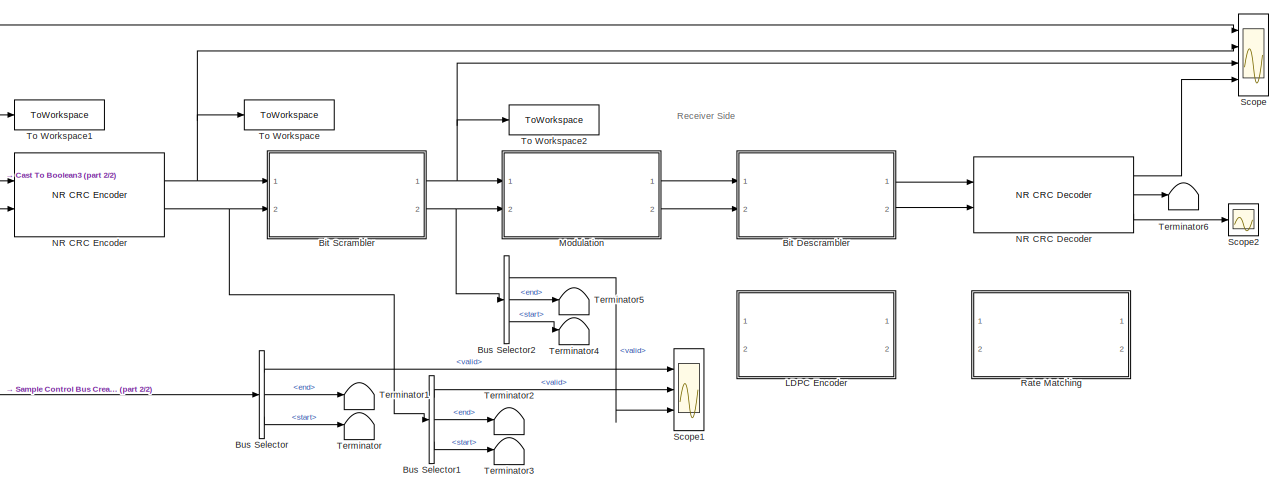
[diagram: root canvas - part 1/2, center side, full height]
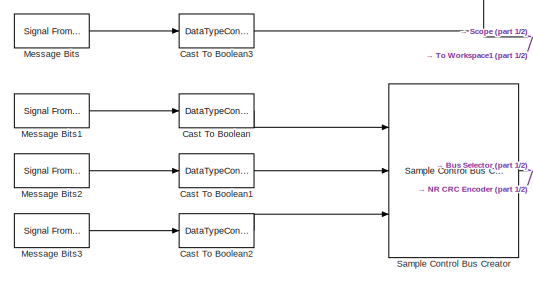
[diagram: root canvas - part 2/2, middle left region]
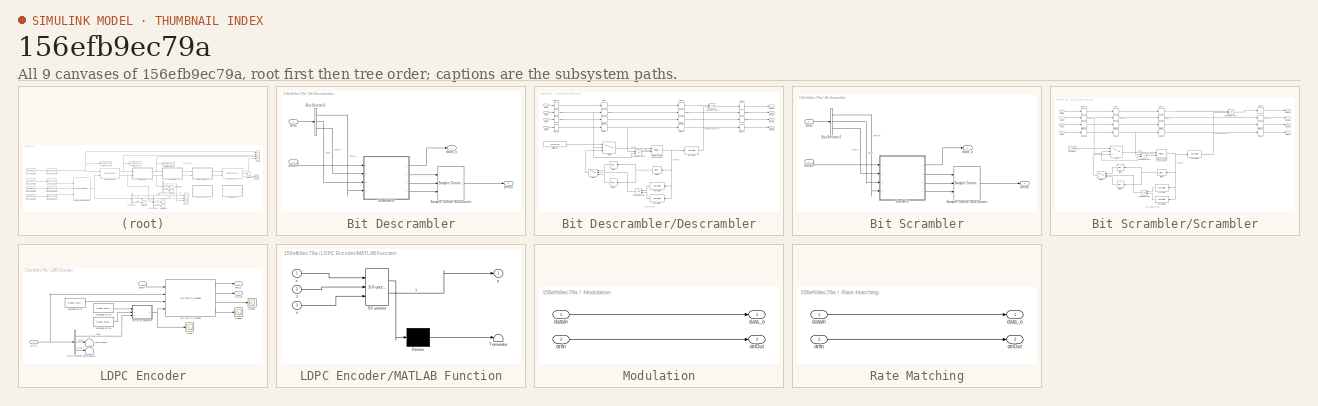
[diagram: thumbnail index - all 9 canvases of the model, root first then tree order]
MODEL slx_156efb9ec79a
KIND model
CONFIG AbsTol = auto
CONFIG EnableMultiTasking = off
CONFIG FixedStep = auto
CONFIG MaxStep = auto
CONFIG MinStep = auto
CONFIG RelTol = 1e-3
CONFIG SampleTimeConstraint = Unconstrained
CONFIG SolverName = VariableStepAuto
CONFIG StartTime = 0.0
CONFIG StopTime = 150
BLOCK [SubSystem] Bit Descrambler
  Ports = [2, 2]
  RequestExecContextInheritance = off
BLOCK [BusSelector] Bit Descrambler/Bus Selector2
  OutputSignals = valid,end,start
  Ports = [1, 3]
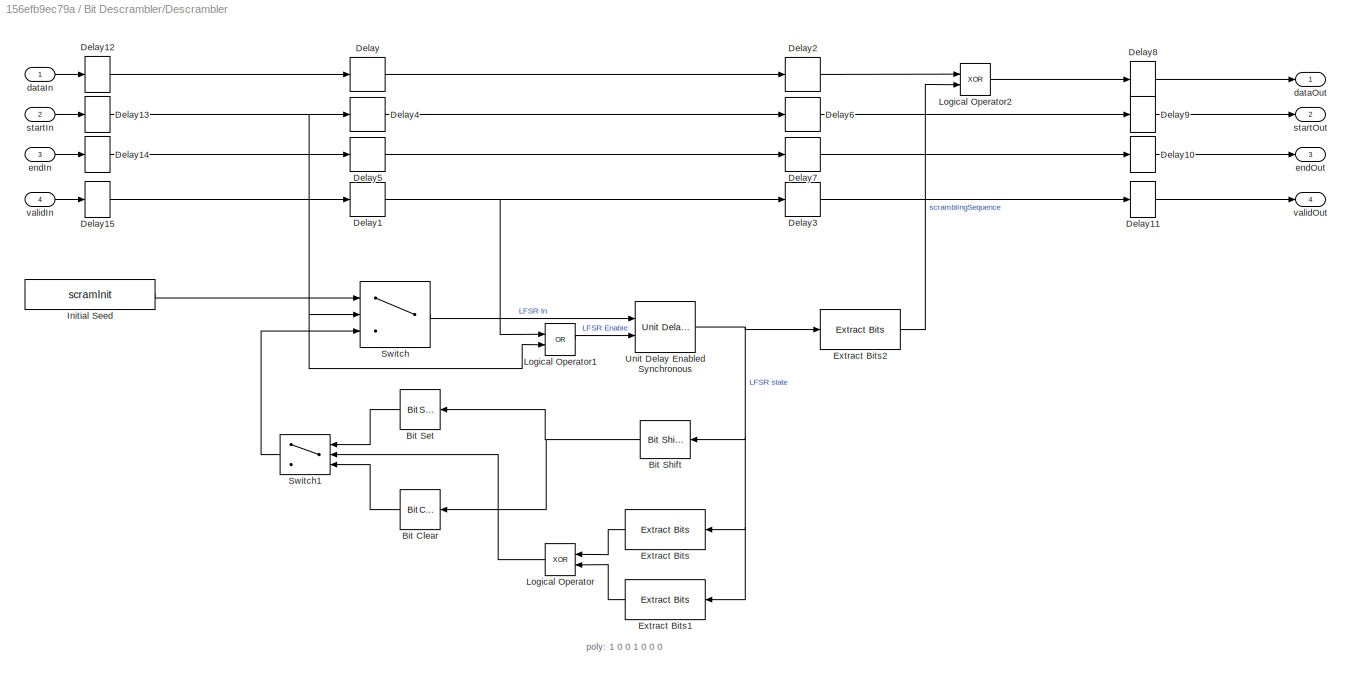
BLOCK [SubSystem] Bit Descrambler/Descrambler
  Ports = [4, 4]
  RequestExecContextInheritance = off
BLOCK [Reference] Bit Descrambler/Descrambler/Bit Clear  REF=simulink/Logic and Bit
Operations/Bit Clear
  Ports = [1, 1]
  SourceBlock = simulink/Logic and Bit\nOperations/Bit Clear
  SourceProductBaseCode = SL
  SourceType = Bit Clear
BLOCK [Reference] Bit Descrambler/Descrambler/Bit Set  REF=simulink/Logic and Bit
Operations/Bit Set
  Ports = [1, 1]
  SourceBlock = simulink/Logic and Bit\nOperations/Bit Set
  SourceProductBaseCode = SL
  SourceType = Bit Set
BLOCK [Reference] Bit Descrambler/Descrambler/Bit Shift  REF=hdlsllib/Logic and Bit
Operations/Bit Shift
  Ports = [1, 1]
  SourceBlock = hdlsllib/Logic and Bit\nOperations/Bit Shift
  SourceProductBaseCode = SL
  SourceType = Bit Shift
BLOCK [Delay] Bit Descrambler/Descrambler/Delay
  DelayLength = 1
  InputPortMap = u0
  Ports = [1, 1]
BLOCK [Delay] Bit Descrambler/Descrambler/Delay1
  DelayLength = 1
  InputPortMap = u0
  Ports = [1, 1]
BLOCK [Delay] Bit Descrambler/Descrambler/Delay10
  DelayLength = 1
  InitialCondition = 0
  InputPortMap = u0
  Ports = [1, 1]
BLOCK [Delay] Bit Descrambler/Descrambler/Delay11
  DelayLength = 1
  InitialCondition = 0
  InputPortMap = u0
  Ports = [1, 1]
BLOCK [Delay] Bit Descrambler/Descrambler/Delay12
  DelayLength = 1
  InitialCondition = 0
  InputPortMap = u0
  Ports = [1, 1]
BLOCK [Delay] Bit Descrambler/Descrambler/Delay13
  DelayLength = 1
  InitialCondition = 0
  InputPortMap = u0
  Ports = [1, 1]
BLOCK [Delay] Bit Descrambler/Descrambler/Delay14
  DelayLength = 1
  InitialCondition = 0
  InputPortMap = u0
  Ports = [1, 1]
BLOCK [Delay] Bit Descrambler/Descrambler/Delay15
  DelayLength = 1
  InitialCondition = 0
  InputPortMap = u0
  Ports = [1, 1]
BLOCK [Delay] Bit Descrambler/Descrambler/Delay2
  DelayLength = 1
  InputPortMap = u0
  Ports = [1, 1]
BLOCK [Delay] Bit Descrambler/Descrambler/Delay3
  DelayLength = 1
  InputPortMap = u0
  Ports = [1, 1]
BLOCK [Delay] Bit Descrambler/Descrambler/Delay4
  DelayLength = 1
  InputPortMap = u0
  Ports = [1, 1]
BLOCK [Delay] Bit Descrambler/Descrambler/Delay5
  DelayLength = 1
  InputPortMap = u0
  Ports = [1, 1]
BLOCK [Delay] Bit Descrambler/Descrambler/Delay6
  DelayLength = 1
  InputPortMap = u0
  Ports = [1, 1]
BLOCK [Delay] Bit Descrambler/Descrambler/Delay7
  DelayLength = 1
  InputPortMap = u0
  Ports = [1, 1]
BLOCK [Delay] Bit Descrambler/Descrambler/Delay8
  DelayLength = 1
  InitialCondition = 0
  InputPortMap = u0
  Ports = [1, 1]
BLOCK [Delay] Bit Descrambler/Descrambler/Delay9
  DelayLength = 1
  InitialCondition = 0
  InputPortMap = u0
  Ports = [1, 1]
BLOCK [Reference] Bit Descrambler/Descrambler/Extract Bits  REF=simulink/Logic and Bit
Operations/Extract Bits
  Ports = [1, 1]
  SourceBlock = simulink/Logic and Bit\nOperations/Extract Bits
  SourceProductBaseCode = SL
  SourceType = Extract Bits
BLOCK [Reference] Bit Descrambler/Descrambler/Extract Bits1  REF=simulink/Logic and Bit
Operations/Extract Bits
  Ports = [1, 1]
  SourceBlock = simulink/Logic and Bit\nOperations/Extract Bits
  SourceProductBaseCode = SL
  SourceType = Extract Bits
BLOCK [Reference] Bit Descrambler/Descrambler/Extract Bits2  REF=simulink/Logic and Bit
Operations/Extract Bits
  Ports = [1, 1]
  SourceBlock = simulink/Logic and Bit\nOperations/Extract Bits
  SourceProductBaseCode = SL
  SourceType = Extract Bits
BLOCK [Constant] Bit Descrambler/Descrambler/Initial Seed
  OutDataTypeStr = fixdt(0,7,0)
  SampleTime = -1
  Value = scramInit
BLOCK [Logic] Bit Descrambler/Descrambler/Logical Operator
  AllPortsSameDT = off
  IconShape = distinctive
  Operator = XOR
  OutDataTypeStr = boolean
  Ports = [2, 1]
BLOCK [Logic] Bit Descrambler/Descrambler/Logical Operator1
  AllPortsSameDT = off
  IconShape = distinctive
  Operator = OR
  OutDataTypeStr = boolean
  Ports = [2, 1]
BLOCK [Logic] Bit Descrambler/Descrambler/Logical Operator2
  AllPortsSameDT = off
  IconShape = distinctive
  Operator = XOR
  OutDataTypeStr = boolean
  Ports = [2, 1]
BLOCK [Switch] Bit Descrambler/Descrambler/Switch
  InputSameDT = off
  SaturateOnIntegerOverflow = off
  Threshold = 1
BLOCK [Switch] Bit Descrambler/Descrambler/Switch1
  InputSameDT = off
  SaturateOnIntegerOverflow = off
  Threshold = 1
BLOCK [Reference] Bit Descrambler/Descrambler/Unit Delay Enabled Synchronous  REF=hdlsllib/Discrete/Unit Delay Enabled
Synchronous
  Ports = [2, 1]
  SourceBlock = hdlsllib/Discrete/Unit Delay Enabled\nSynchronous
  SourceProductBaseCode = SL
  SourceType = Unit Delay Enabled Synchronous
BLOCK [Inport] Bit Descrambler/Descrambler/dataIn
BLOCK [Outport] Bit Descrambler/Descrambler/dataOut
BLOCK [Inport] Bit Descrambler/Descrambler/endIn
  Port = 3
BLOCK [Outport] Bit Descrambler/Descrambler/endOut
  Port = 3
BLOCK [Inport] Bit Descrambler/Descrambler/startIn
  Port = 2
BLOCK [Outport] Bit Descrambler/Descrambler/startOut
  Port = 2
BLOCK [Inport] Bit Descrambler/Descrambler/validIn
  Port = 4
BLOCK [Outport] Bit Descrambler/Descrambler/validOut
  Port = 4
BLOCK [Reference] Bit Descrambler/Sample Control Bus Creator  REF=whdlutilities/Sample Control
Bus Creator
  Ports = [3, 1]
  SourceBlock = whdlutilities/Sample Control\nBus Creator
  SourceProductBaseCode = LH
  SourceType = Sample Control Bus Creator
BLOCK [Inport] Bit Descrambler/ctrlIn
  Port = 2
BLOCK [Outport] Bit Descrambler/ctrlOut
  Port = 2
BLOCK [Inport] Bit Descrambler/dataIn
BLOCK [Outport] Bit Descrambler/data_o
BLOCK [SubSystem] Bit Scrambler
  Ports = [2, 2]
  RequestExecContextInheritance = off
BLOCK [BusSelector] Bit Scrambler/Bus Selector2
  OutputSignals = valid,end,start
  Ports = [1, 3]
BLOCK [Reference] Bit Scrambler/Sample Control Bus Creator  REF=whdlutilities/Sample Control
Bus Creator
  Ports = [3, 1]
  SourceBlock = whdlutilities/Sample Control\nBus Creator
  SourceProductBaseCode = LH
  SourceType = Sample Control Bus Creator
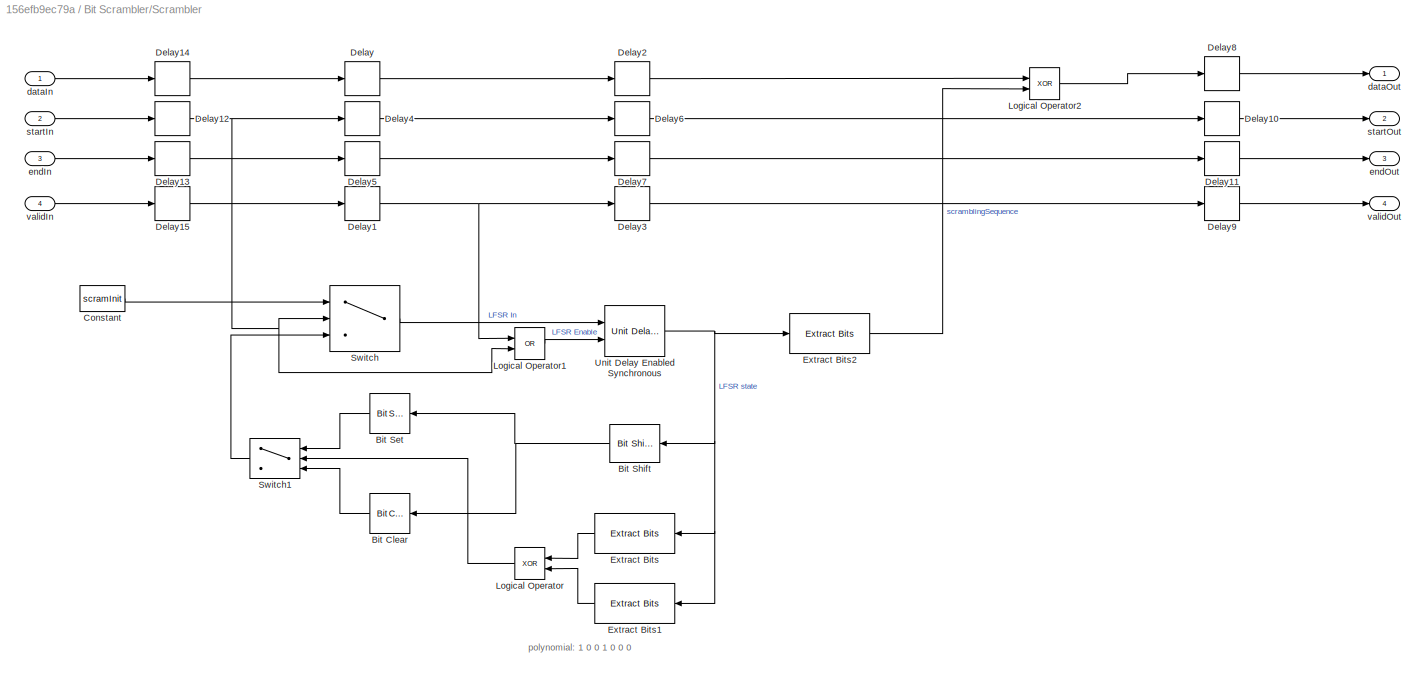
BLOCK [SubSystem] Bit Scrambler/Scrambler
  Ports = [4, 4]
  RequestExecContextInheritance = off
BLOCK [Reference] Bit Scrambler/Scrambler/Bit Clear  REF=simulink/Logic and Bit
Operations/Bit Clear
  Ports = [1, 1]
  SourceBlock = simulink/Logic and Bit\nOperations/Bit Clear
  SourceProductBaseCode = SL
  SourceType = Bit Clear
BLOCK [Reference] Bit Scrambler/Scrambler/Bit Set  REF=simulink/Logic and Bit
Operations/Bit Set
  Ports = [1, 1]
  SourceBlock = simulink/Logic and Bit\nOperations/Bit Set
  SourceProductBaseCode = SL
  SourceType = Bit Set
BLOCK [Reference] Bit Scrambler/Scrambler/Bit Shift  REF=hdlsllib/Logic and Bit
Operations/Bit Shift
  Ports = [1, 1]
  SourceBlock = hdlsllib/Logic and Bit\nOperations/Bit Shift
  SourceProductBaseCode = SL
  SourceType = Bit Shift
BLOCK [Constant] Bit Scrambler/Scrambler/Constant
  OutDataTypeStr = fixdt(0,7,0)
  SampleTime = -1
  Value = scramInit
BLOCK [Delay] Bit Scrambler/Scrambler/Delay
  DelayLength = 1
  InputPortMap = u0
  Ports = [1, 1]
BLOCK [Delay] Bit Scrambler/Scrambler/Delay1
  DelayLength = 1
  InputPortMap = u0
  Ports = [1, 1]
BLOCK [Delay] Bit Scrambler/Scrambler/Delay10
  DelayLength = 1
  InputPortMap = u0
  Ports = [1, 1]
BLOCK [Delay] Bit Scrambler/Scrambler/Delay11
  DelayLength = 1
  InputPortMap = u0
  Ports = [1, 1]
BLOCK [Delay] Bit Scrambler/Scrambler/Delay12
  DelayLength = 1
  InputPortMap = u0
  Ports = [1, 1]
BLOCK [Delay] Bit Scrambler/Scrambler/Delay13
  DelayLength = 1
  InputPortMap = u0
  Ports = [1, 1]
BLOCK [Delay] Bit Scrambler/Scrambler/Delay14
  DelayLength = 1
  InputPortMap = u0
  Ports = [1, 1]
BLOCK [Delay] Bit Scrambler/Scrambler/Delay15
  DelayLength = 1
  InputPortMap = u0
  Ports = [1, 1]
BLOCK [Delay] Bit Scrambler/Scrambler/Delay2
  DelayLength = 1
  InputPortMap = u0
  Ports = [1, 1]
BLOCK [Delay] Bit Scrambler/Scrambler/Delay3
  DelayLength = 1
  InputPortMap = u0
  Ports = [1, 1]
BLOCK [Delay] Bit Scrambler/Scrambler/Delay4
  DelayLength = 1
  InputPortMap = u0
  Ports = [1, 1]
BLOCK [Delay] Bit Scrambler/Scrambler/Delay5
  DelayLength = 1
  InputPortMap = u0
  Ports = [1, 1]
BLOCK [Delay] Bit Scrambler/Scrambler/Delay6
  DelayLength = 1
  InputPortMap = u0
  Ports = [1, 1]
BLOCK [Delay] Bit Scrambler/Scrambler/Delay7
  DelayLength = 1
  InputPortMap = u0
  Ports = [1, 1]
BLOCK [Delay] Bit Scrambler/Scrambler/Delay8
  DelayLength = 1
  InputPortMap = u0
  Ports = [1, 1]
BLOCK [Delay] Bit Scrambler/Scrambler/Delay9
  DelayLength = 1
  InputPortMap = u0
  Ports = [1, 1]
BLOCK [Reference] Bit Scrambler/Scrambler/Extract Bits  REF=simulink/Logic and Bit
Operations/Extract Bits
  Ports = [1, 1]
  SourceBlock = simulink/Logic and Bit\nOperations/Extract Bits
  SourceProductBaseCode = SL
  SourceType = Extract Bits
BLOCK [Reference] Bit Scrambler/Scrambler/Extract Bits1  REF=simulink/Logic and Bit
Operations/Extract Bits
  Ports = [1, 1]
  SourceBlock = simulink/Logic and Bit\nOperations/Extract Bits
  SourceProductBaseCode = SL
  SourceType = Extract Bits
BLOCK [Reference] Bit Scrambler/Scrambler/Extract Bits2  REF=simulink/Logic and Bit
Operations/Extract Bits
  Ports = [1, 1]
  SourceBlock = simulink/Logic and Bit\nOperations/Extract Bits
  SourceProductBaseCode = SL
  SourceType = Extract Bits
BLOCK [Logic] Bit Scrambler/Scrambler/Logical Operator
  AllPortsSameDT = off
  IconShape = distinctive
  Operator = XOR
  OutDataTypeStr = boolean
  Ports = [2, 1]
BLOCK [Logic] Bit Scrambler/Scrambler/Logical Operator1
  AllPortsSameDT = off
  IconShape = distinctive
  Operator = OR
  OutDataTypeStr = boolean
  Ports = [2, 1]
BLOCK [Logic] Bit Scrambler/Scrambler/Logical Operator2
  AllPortsSameDT = off
  IconShape = distinctive
  Operator = XOR
  OutDataTypeStr = boolean
  Ports = [2, 1]
BLOCK [Switch] Bit Scrambler/Scrambler/Switch
  InputSameDT = off
  SaturateOnIntegerOverflow = off
  Threshold = 1
BLOCK [Switch] Bit Scrambler/Scrambler/Switch1
  InputSameDT = off
  SaturateOnIntegerOverflow = off
  Threshold = 1
BLOCK [Reference] Bit Scrambler/Scrambler/Unit Delay Enabled Synchronous  REF=hdlsllib/Discrete/Unit Delay Enabled
Synchronous
  Ports = [2, 1]
  SourceBlock = hdlsllib/Discrete/Unit Delay Enabled\nSynchronous
  SourceProductBaseCode = SL
  SourceType = Unit Delay Enabled Synchronous
BLOCK [Inport] Bit Scrambler/Scrambler/dataIn
BLOCK [Outport] Bit Scrambler/Scrambler/dataOut
BLOCK [Inport] Bit Scrambler/Scrambler/endIn
  Port = 3
BLOCK [Outport] Bit Scrambler/Scrambler/endOut
  Port = 3
BLOCK [Inport] Bit Scrambler/Scrambler/startIn
  Port = 2
BLOCK [Outport] Bit Scrambler/Scrambler/startOut
  Port = 2
BLOCK [Inport] Bit Scrambler/Scrambler/validIn
  Port = 4
BLOCK [Outport] Bit Scrambler/Scrambler/validOut
  Port = 4
BLOCK [Inport] Bit Scrambler/ctrlIn
  Port = 2
BLOCK [Outport] Bit Scrambler/ctrlOut
  Port = 2
BLOCK [Inport] Bit Scrambler/dataIn
BLOCK [Outport] Bit Scrambler/data_o
BLOCK [BusSelector] Bus Selector
  OutputSignals = valid,end,start
  Ports = [1, 3]
BLOCK [BusSelector] Bus Selector1
  OutputSignals = valid,end,start
  Ports = [1, 3]
BLOCK [BusSelector] Bus Selector2
  OutputSignals = valid,end,start
  Ports = [1, 3]
BLOCK [DataTypeConversion] Cast To Boolean
  OutDataTypeStr = boolean
  RndMeth = Floor
  SaturateOnIntegerOverflow = off
BLOCK [DataTypeConversion] Cast To Boolean1
  OutDataTypeStr = boolean
  RndMeth = Floor
  SaturateOnIntegerOverflow = off
BLOCK [DataTypeConversion] Cast To Boolean2
  OutDataTypeStr = boolean
  RndMeth = Floor
  SaturateOnIntegerOverflow = off
BLOCK [DataTypeConversion] Cast To Boolean3
  OutDataTypeStr = boolean
  RndMeth = Floor
  SaturateOnIntegerOverflow = off
BLOCK [SubSystem] LDPC Encoder
  Commented = on
  Ports = [2, 2]
  RequestExecContextInheritance = off
BLOCK [BusSelector] LDPC Encoder/Bus Selector2
  OutputSignals = valid,end,start
  Ports = [1, 3]
BLOCK [SubSystem] LDPC Encoder/MATLAB Function
  ErrorFcn = Stateflow.Translate.translate
  PermitHierarchicalResolution = ExplicitOnly
  Ports = [3, 1]
  RequestExecContextInheritance = off
  SFBlockType = MATLAB Function
  TreatAsAtomicUnit = on
BLOCK [Demux] LDPC Encoder/MATLAB Function/ Demux 
  Outputs = 1
  Ports = [1, 1]
BLOCK [S-Function] LDPC Encoder/MATLAB Function/ SFunction 
  EnableBusSupport = on
  FunctionName = sf_sfun
  PortCounts = [3 2]
  Ports = [3, 2]
  SFcnIsStateOwnerBlock = off
  SFunctionDeploymentMode = off
  Tag = Stateflow S-Function 1
BLOCK [Terminator] LDPC Encoder/MATLAB Function/ Terminator 
BLOCK [Inport] LDPC Encoder/MATLAB Function/s
  Port = 3
BLOCK [Inport] LDPC Encoder/MATLAB Function/x
BLOCK [Outport] LDPC Encoder/MATLAB Function/y
BLOCK [Inport] LDPC Encoder/MATLAB Function/z
  Port = 2
BLOCK [Reference] LDPC Encoder/Message Bits  REF=dspsrcs4/Signal From
Workspace
  Ports = [0, 1]
  SourceBlock = dspsrcs4/Signal From\nWorkspace
  SourceProductBaseCode = DS
  SourceType = Signal From Workspace
BLOCK [Reference] LDPC Encoder/Message Bits1  REF=dspsrcs4/Signal From
Workspace
  Ports = [0, 1]
  SourceBlock = dspsrcs4/Signal From\nWorkspace
  SourceProductBaseCode = DS
  SourceType = Signal From Workspace
BLOCK [Reference] LDPC Encoder/Message Bits2  REF=dspsrcs4/Signal From
Workspace
  Ports = [0, 1]
  SourceBlock = dspsrcs4/Signal From\nWorkspace
  SourceProductBaseCode = DS
  SourceType = Signal From Workspace
BLOCK [Reference] LDPC Encoder/NR LDPC Encoder  REF=whdledac/NR LDPC Encoder
  Ports = [4, 4]
  SourceBlock = whdledac/NR LDPC Encoder
  SourceProductBaseCode = LH
  SourceType = NR LDPC Encoder
BLOCK [Scope] LDPC Encoder/Scope
  Floating = off
  NumInputPorts = 1
  Ports = [1]
  ScopeSpecificationString = Simulink.scopes.TimeScopeBlockCfg('CurrentConfiguration', extmgr.ConfigurationSet(extmgr.Configuration('Core','General UI',true),extmgr.Configuration('Core','Source UI',true),extmgr.Configuration('Sources','WiredSimulink',true,'DataLoggingVariableName','ScopeData1'),extmgr.Configuration('Visuals','Time Domain',true,'SerializedDisplays',{struct('MinYLimReal','-0.5','MaxYLimReal','4.5','YLabelReal',...<+1405ch>
BLOCK [Scope] LDPC Encoder/Scope1
  Floating = off
  NumInputPorts = 1
  Ports = [1]
  ScopeSpecificationString = Simulink.scopes.TimeScopeBlockCfg('CurrentConfiguration', extmgr.ConfigurationSet(extmgr.Configuration('Core','General UI',true),extmgr.Configuration('Core','Source UI',true),extmgr.Configuration('Sources','WiredSimulink',true,'DataLoggingVariableName','ScopeData2'),extmgr.Configuration('Visuals','Time Domain',true,'SerializedDisplays',{struct('MinYLimReal','-0.5','MaxYLimReal','4.5','YLabelReal',...<+1407ch>
BLOCK [Scope] LDPC Encoder/Scope2
  Floating = off
  NumInputPorts = 1
  Ports = [1]
  ScopeSpecificationString = Simulink.scopes.TimeScopeBlockCfg('CurrentConfiguration', extmgr.ConfigurationSet(extmgr.Configuration('Core','General UI',true),extmgr.Configuration('Core','Source UI',true),extmgr.Configuration('Sources','WiredSimulink',true,'DataLoggingVariableName','ScopeData3'),extmgr.Configuration('Visuals','Time Domain',true,'SerializedDisplays',{struct('MinYLimReal','-0.125','MaxYLimReal','1.125','YLabelRe...<+1427ch>
BLOCK [Terminator] LDPC Encoder/Terminator2
BLOCK [Terminator] LDPC Encoder/Terminator3
BLOCK [Inport] LDPC Encoder/ctrlIn
  Port = 2
BLOCK [Outport] LDPC Encoder/ctrlOut
  Port = 2
BLOCK [Inport] LDPC Encoder/dataIn
BLOCK [Outport] LDPC Encoder/data_o
BLOCK [Reference] Message Bits  REF=dspsrcs4/Signal From
Workspace
  Ports = [0, 1]
  SourceBlock = dspsrcs4/Signal From\nWorkspace
  SourceProductBaseCode = DS
  SourceType = Signal From Workspace
BLOCK [Reference] Message Bits1  REF=dspsrcs4/Signal From
Workspace
  Ports = [0, 1]
  SourceBlock = dspsrcs4/Signal From\nWorkspace
  SourceProductBaseCode = DS
  SourceType = Signal From Workspace
BLOCK [Reference] Message Bits2  REF=dspsrcs4/Signal From
Workspace
  Ports = [0, 1]
  SourceBlock = dspsrcs4/Signal From\nWorkspace
  SourceProductBaseCode = DS
  SourceType = Signal From Workspace
BLOCK [Reference] Message Bits3  REF=dspsrcs4/Signal From
Workspace
  Ports = [0, 1]
  SourceBlock = dspsrcs4/Signal From\nWorkspace
  SourceProductBaseCode = DS
  SourceType = Signal From Workspace
BLOCK [SubSystem] Modulation
  Ports = [2, 2]
  RequestExecContextInheritance = off
BLOCK [Inport] Modulation/ctrlIn
  Port = 2
BLOCK [Outport] Modulation/ctrlOut
  Port = 2
BLOCK [Inport] Modulation/dataIn
BLOCK [Outport] Modulation/data_o
BLOCK [Reference] NR CRC Decoder  REF=whdledac/NR CRC Decoder
  Ports = [2, 3]
  SourceBlock = whdledac/NR CRC Decoder
  SourceProductBaseCode = LH
  SourceType = NR CRC Decoder
BLOCK [Reference] NR CRC Encoder  REF=whdledac/NR CRC Encoder
  Ports = [2, 2]
  SourceBlock = whdledac/NR CRC Encoder
  SourceProductBaseCode = LH
  SourceType = NR CRC Encoder
BLOCK [SubSystem] Rate Matching
  Commented = on
  Ports = [2, 2]
  RequestExecContextInheritance = off
BLOCK [Inport] Rate Matching/ctrlIn
  Port = 2
BLOCK [Outport] Rate Matching/ctrlOut
  Port = 2
BLOCK [Inport] Rate Matching/dataIn
BLOCK [Outport] Rate Matching/data_o
BLOCK [Reference] Sample Control Bus Creator  REF=whdlutilities/Sample Control
Bus Creator
  Ports = [3, 1]
  SourceBlock = whdlutilities/Sample Control\nBus Creator
  SourceProductBaseCode = LH
  SourceType = Sample Control Bus Creator
BLOCK [Scope] Scope
  Floating = off
  NumInputPorts = 4
  Ports = [4]
  ScopeSpecificationString = Simulink.scopes.TimeScopeBlockCfg('CurrentConfiguration', extmgr.ConfigurationSet(extmgr.Configuration('Core','General UI',true),extmgr.Configuration('Core','Source UI',true),extmgr.Configuration('Sources','WiredSimulink',true),extmgr.Configuration('Visuals','Time Domain',true,'SerializedDisplays',{struct('MinYLimReal','-0.125','MaxYLimReal','1.125','YLabelReal','','MinYLimMag','0.00000','MaxYLimM...<+3440ch>
BLOCK [Scope] Scope1
  Floating = off
  NumInputPorts = 3
  Ports = [3]
  ScopeSpecificationString = Simulink.scopes.TimeScopeBlockCfg('CurrentConfiguration', extmgr.ConfigurationSet(extmgr.Configuration('Core','General UI',true),extmgr.Configuration('Core','Source UI',true),extmgr.Configuration('Sources','WiredSimulink',true,'DataLoggingVariableName','ScopeData1'),extmgr.Configuration('Visuals','Time Domain',true,'SerializedDisplays',{struct('MinYLimReal','-0.125','MaxYLimReal','1.125','YLabelRe...<+2744ch>
BLOCK [Scope] Scope2
  Floating = off
  NumInputPorts = 1
  Ports = [1]
  ScopeSpecificationString = Simulink.scopes.TimeScopeBlockCfg('CurrentConfiguration', extmgr.ConfigurationSet(extmgr.Configuration('Core','General UI',true),extmgr.Configuration('Core','Source UI',true),extmgr.Configuration('Sources','WiredSimulink',true,'DataLoggingVariableName','ScopeData1'),extmgr.Configuration('Visuals','Time Domain',true,'SerializedDisplays',{struct('MinYLimReal','-1.00000','MaxYLimReal','1.00000','YLab...<+1404ch>
BLOCK [Terminator] Terminator
BLOCK [Terminator] Terminator1
BLOCK [Terminator] Terminator2
BLOCK [Terminator] Terminator3
BLOCK [Terminator] Terminator4
BLOCK [Terminator] Terminator5
BLOCK [Terminator] Terminator6
BLOCK [ToWorkspace] To Workspace
  FixptAsFi = on
  MaxDataPoints = inf
  Ports = [1]
  SampleTime = 1
  Save2DSignal = 2-D array (concatenate along first dimension)
  VariableName = CRC_output
BLOCK [ToWorkspace] To Workspace1
  FixptAsFi = on
  MaxDataPoints = inf
  Ports = [1]
  SampleTime = 1
  Save2DSignal = 2-D array (concatenate along first dimension)
  VariableName = Data_In
BLOCK [ToWorkspace] To Workspace2
  FixptAsFi = on
  MaxDataPoints = inf
  Ports = [1]
  SampleTime = 1
  Save2DSignal = 2-D array (concatenate along first dimension)
  VariableName = LDPC_output
ANNOTATION (root): Receiver Side
ANNOTATION Bit Descrambler/Descrambler: poly: 1 0 0 1 0 0 0
ANNOTATION Bit Scrambler/Scrambler: polynomial: 1 0 0 1 0 0 0
LINE Bit Descrambler/Bus Selector2:1 -> Bit Descrambler/Descrambler:4
LINE Bit Descrambler/Bus Selector2:2 -> Bit Descrambler/Descrambler:3
LINE Bit Descrambler/Bus Selector2:3 -> Bit Descrambler/Descrambler:2
LINE Bit Descrambler/Descrambler/Bit Clear:1 -> Bit Descrambler/Descrambler/Switch1:3
LINE Bit Descrambler/Descrambler/Bit Set:1 -> Bit Descrambler/Descrambler/Switch1:1
NET Bit Descrambler/Descrambler/Bit Shift:1 -> Bit Descrambler/Descrambler/Bit Clear:1, Bit Descrambler/Descrambler/Bit Set:1
LINE Bit Descrambler/Descrambler/Delay10:1 -> Bit Descrambler/Descrambler/endOut:1
LINE Bit Descrambler/Descrambler/Delay11:1 -> Bit Descrambler/Descrambler/validOut:1
LINE Bit Descrambler/Descrambler/Delay12:1 -> Bit Descrambler/Descrambler/Delay:1
NET Bit Descrambler/Descrambler/Delay13:1 -> Bit Descrambler/Descrambler/Delay4:1, Bit Descrambler/Descrambler/Logical Operator1:2, Bit Descrambler/Descrambler/Switch:2
LINE Bit Descrambler/Descrambler/Delay14:1 -> Bit Descrambler/Descrambler/Delay5:1
LINE Bit Descrambler/Descrambler/Delay15:1 -> Bit Descrambler/Descrambler/Delay1:1
NET Bit Descrambler/Descrambler/Delay1:1 -> Bit Descrambler/Descrambler/Delay3:1, Bit Descrambler/Descrambler/Logical Operator1:1
LINE Bit Descrambler/Descrambler/Delay2:1 -> Bit Descrambler/Descrambler/Logical Operator2:1
LINE Bit Descrambler/Descrambler/Delay3:1 -> Bit Descrambler/Descrambler/Delay11:1
LINE Bit Descrambler/Descrambler/Delay4:1 -> Bit Descrambler/Descrambler/Delay6:1
LINE Bit Descrambler/Descrambler/Delay5:1 -> Bit Descrambler/Descrambler/Delay7:1
LINE Bit Descrambler/Descrambler/Delay6:1 -> Bit Descrambler/Descrambler/Delay9:1
LINE Bit Descrambler/Descrambler/Delay7:1 -> Bit Descrambler/Descrambler/Delay10:1
LINE Bit Descrambler/Descrambler/Delay8:1 -> Bit Descrambler/Descrambler/dataOut:1
LINE Bit Descrambler/Descrambler/Delay9:1 -> Bit Descrambler/Descrambler/startOut:1
LINE Bit Descrambler/Descrambler/Delay:1 -> Bit Descrambler/Descrambler/Delay2:1
LINE Bit Descrambler/Descrambler/Extract Bits1:1 -> Bit Descrambler/Descrambler/Logical Operator:2
LINE Bit Descrambler/Descrambler/Extract Bits2:1 -> Bit Descrambler/Descrambler/Logical Operator2:2
LINE Bit Descrambler/Descrambler/Extract Bits:1 -> Bit Descrambler/Descrambler/Logical Operator:1
LINE Bit Descrambler/Descrambler/Initial Seed:1 -> Bit Descrambler/Descrambler/Switch:1
LINE Bit Descrambler/Descrambler/Logical Operator1:1 -> Bit Descrambler/Descrambler/Unit Delay Enabled Synchronous:2
LINE Bit Descrambler/Descrambler/Logical Operator2:1 -> Bit Descrambler/Descrambler/Delay8:1
LINE Bit Descrambler/Descrambler/Logical Operator:1 -> Bit Descrambler/Descrambler/Switch1:2
LINE Bit Descrambler/Descrambler/Switch1:1 -> Bit Descrambler/Descrambler/Switch:3
LINE Bit Descrambler/Descrambler/Switch:1 -> Bit Descrambler/Descrambler/Unit Delay Enabled Synchronous:1
NET Bit Descrambler/Descrambler/Unit Delay Enabled Synchronous:1 -> Bit Descrambler/Descrambler/Bit Shift:1, Bit Descrambler/Descrambler/Extract Bits1:1, Bit Descrambler/Descrambler/Extract Bits2:1, Bit Descrambler/Descrambler/Extract Bits:1
LINE Bit Descrambler/Descrambler/dataIn:1 -> Bit Descrambler/Descrambler/Delay12:1
LINE Bit Descrambler/Descrambler/endIn:1 -> Bit Descrambler/Descrambler/Delay14:1
LINE Bit Descrambler/Descrambler/startIn:1 -> Bit Descrambler/Descrambler/Delay13:1
LINE Bit Descrambler/Descrambler/validIn:1 -> Bit Descrambler/Descrambler/Delay15:1
LINE Bit Descrambler/Descrambler:1 -> Bit Descrambler/data_o:1
LINE Bit Descrambler/Descrambler:2 -> Bit Descrambler/Sample Control Bus Creator:1
LINE Bit Descrambler/Descrambler:3 -> Bit Descrambler/Sample Control Bus Creator:2
LINE Bit Descrambler/Descrambler:4 -> Bit Descrambler/Sample Control Bus Creator:3
LINE Bit Descrambler/Sample Control Bus Creator:1 -> Bit Descrambler/ctrlOut:1
LINE Bit Descrambler/ctrlIn:1 -> Bit Descrambler/Bus Selector2:1
LINE Bit Descrambler/dataIn:1 -> Bit Descrambler/Descrambler:1
LINE Bit Descrambler:1 -> NR CRC Decoder:1
LINE Bit Descrambler:2 -> NR CRC Decoder:2
LINE Bit Scrambler/Bus Selector2:1 -> Bit Scrambler/Scrambler:4
LINE Bit Scrambler/Bus Selector2:2 -> Bit Scrambler/Scrambler:3
LINE Bit Scrambler/Bus Selector2:3 -> Bit Scrambler/Scrambler:2
LINE Bit Scrambler/Sample Control Bus Creator:1 -> Bit Scrambler/ctrlOut:1
LINE Bit Scrambler/Scrambler/Bit Clear:1 -> Bit Scrambler/Scrambler/Switch1:3
LINE Bit Scrambler/Scrambler/Bit Set:1 -> Bit Scrambler/Scrambler/Switch1:1
NET Bit Scrambler/Scrambler/Bit Shift:1 -> Bit Scrambler/Scrambler/Bit Clear:1, Bit Scrambler/Scrambler/Bit Set:1
LINE Bit Scrambler/Scrambler/Constant:1 -> Bit Scrambler/Scrambler/Switch:1
LINE Bit Scrambler/Scrambler/Delay10:1 -> Bit Scrambler/Scrambler/startOut:1
LINE Bit Scrambler/Scrambler/Delay11:1 -> Bit Scrambler/Scrambler/endOut:1
NET Bit Scrambler/Scrambler/Delay12:1 -> Bit Scrambler/Scrambler/Delay4:1, Bit Scrambler/Scrambler/Logical Operator1:2, Bit Scrambler/Scrambler/Switch:2
LINE Bit Scrambler/Scrambler/Delay13:1 -> Bit Scrambler/Scrambler/Delay5:1
LINE Bit Scrambler/Scrambler/Delay14:1 -> Bit Scrambler/Scrambler/Delay:1
LINE Bit Scrambler/Scrambler/Delay15:1 -> Bit Scrambler/Scrambler/Delay1:1
NET Bit Scrambler/Scrambler/Delay1:1 -> Bit Scrambler/Scrambler/Delay3:1, Bit Scrambler/Scrambler/Logical Operator1:1
LINE Bit Scrambler/Scrambler/Delay2:1 -> Bit Scrambler/Scrambler/Logical Operator2:1
LINE Bit Scrambler/Scrambler/Delay3:1 -> Bit Scrambler/Scrambler/Delay9:1
LINE Bit Scrambler/Scrambler/Delay4:1 -> Bit Scrambler/Scrambler/Delay6:1
LINE Bit Scrambler/Scrambler/Delay5:1 -> Bit Scrambler/Scrambler/Delay7:1
LINE Bit Scrambler/Scrambler/Delay6:1 -> Bit Scrambler/Scrambler/Delay10:1
LINE Bit Scrambler/Scrambler/Delay7:1 -> Bit Scrambler/Scrambler/Delay11:1
LINE Bit Scrambler/Scrambler/Delay8:1 -> Bit Scrambler/Scrambler/dataOut:1
LINE Bit Scrambler/Scrambler/Delay9:1 -> Bit Scrambler/Scrambler/validOut:1
LINE Bit Scrambler/Scrambler/Delay:1 -> Bit Scrambler/Scrambler/Delay2:1
LINE Bit Scrambler/Scrambler/Extract Bits1:1 -> Bit Scrambler/Scrambler/Logical Operator:2
LINE Bit Scrambler/Scrambler/Extract Bits2:1 -> Bit Scrambler/Scrambler/Logical Operator2:2
LINE Bit Scrambler/Scrambler/Extract Bits:1 -> Bit Scrambler/Scrambler/Logical Operator:1
LINE Bit Scrambler/Scrambler/Logical Operator1:1 -> Bit Scrambler/Scrambler/Unit Delay Enabled Synchronous:2
LINE Bit Scrambler/Scrambler/Logical Operator2:1 -> Bit Scrambler/Scrambler/Delay8:1
LINE Bit Scrambler/Scrambler/Logical Operator:1 -> Bit Scrambler/Scrambler/Switch1:2
LINE Bit Scrambler/Scrambler/Switch1:1 -> Bit Scrambler/Scrambler/Switch:3
LINE Bit Scrambler/Scrambler/Switch:1 -> Bit Scrambler/Scrambler/Unit Delay Enabled Synchronous:1
NET Bit Scrambler/Scrambler/Unit Delay Enabled Synchronous:1 -> Bit Scrambler/Scrambler/Bit Shift:1, Bit Scrambler/Scrambler/Extract Bits1:1, Bit Scrambler/Scrambler/Extract Bits2:1, Bit Scrambler/Scrambler/Extract Bits:1
LINE Bit Scrambler/Scrambler/dataIn:1 -> Bit Scrambler/Scrambler/Delay14:1
LINE Bit Scrambler/Scrambler/endIn:1 -> Bit Scrambler/Scrambler/Delay13:1
LINE Bit Scrambler/Scrambler/startIn:1 -> Bit Scrambler/Scrambler/Delay12:1
LINE Bit Scrambler/Scrambler/validIn:1 -> Bit Scrambler/Scrambler/Delay15:1
LINE Bit Scrambler/Scrambler:1 -> Bit Scrambler/data_o:1
LINE Bit Scrambler/Scrambler:2 -> Bit Scrambler/Sample Control Bus Creator:1
LINE Bit Scrambler/Scrambler:3 -> Bit Scrambler/Sample Control Bus Creator:2
LINE Bit Scrambler/Scrambler:4 -> Bit Scrambler/Sample Control Bus Creator:3
LINE Bit Scrambler/ctrlIn:1 -> Bit Scrambler/Bus Selector2:1
LINE Bit Scrambler/dataIn:1 -> Bit Scrambler/Scrambler:1
NET Bit Scrambler:1 -> Modulation:1, Scope:3, To Workspace2:1
NET Bit Scrambler:2 -> Bus Selector2:1, Modulation:2
LINE Bus Selector1:1 -> Scope1:2
LINE Bus Selector1:2 -> Terminator2:1
LINE Bus Selector1:3 -> Terminator3:1
LINE Bus Selector2:1 -> Scope1:3
LINE Bus Selector2:2 -> Terminator5:1
LINE Bus Selector2:3 -> Terminator4:1
LINE Bus Selector:1 -> Scope1:1
LINE Bus Selector:2 -> Terminator1:1
LINE Bus Selector:3 -> Terminator:1
LINE Cast To Boolean1:1 -> Sample Control Bus Creator:2
LINE Cast To Boolean2:1 -> Sample Control Bus Creator:3
NET Cast To Boolean3:1 -> NR CRC Encoder:1, Scope:1, To Workspace1:1
LINE Cast To Boolean:1 -> Sample Control Bus Creator:1
LINE LDPC Encoder/Bus Selector2:1 -> LDPC Encoder/MATLAB Function:3
LINE LDPC Encoder/Bus Selector2:2 -> LDPC Encoder/Terminator3:1
LINE LDPC Encoder/Bus Selector2:3 -> LDPC Encoder/Terminator2:1
NET LDPC Encoder/MATLAB Function:1 -> LDPC Encoder/NR LDPC Encoder:4, LDPC Encoder/Scope:1
LINE LDPC Encoder/Message Bits1:1 -> LDPC Encoder/MATLAB Function:2
LINE LDPC Encoder/Message Bits2:1 -> LDPC Encoder/MATLAB Function:1
LINE LDPC Encoder/Message Bits:1 -> LDPC Encoder/NR LDPC Encoder:3
LINE LDPC Encoder/NR LDPC Encoder:1 -> LDPC Encoder/data_o:1
LINE LDPC Encoder/NR LDPC Encoder:2 -> LDPC Encoder/ctrlOut:1
LINE LDPC Encoder/NR LDPC Encoder:3 -> LDPC Encoder/Scope1:1
LINE LDPC Encoder/NR LDPC Encoder:4 -> LDPC Encoder/Scope2:1
NET LDPC Encoder/ctrlIn:1 -> LDPC Encoder/Bus Selector2:1, LDPC Encoder/NR LDPC Encoder:2
LINE LDPC Encoder/dataIn:1 -> LDPC Encoder/NR LDPC Encoder:1
LINE Message Bits1:1 -> Cast To Boolean:1
LINE Message Bits2:1 -> Cast To Boolean1:1
LINE Message Bits3:1 -> Cast To Boolean2:1
LINE Message Bits:1 -> Cast To Boolean3:1
LINE Modulation/ctrlIn:1 -> Modulation/ctrlOut:1
LINE Modulation/dataIn:1 -> Modulation/data_o:1
LINE Modulation:1 -> Bit Descrambler:1
LINE Modulation:2 -> Bit Descrambler:2
LINE NR CRC Decoder:1 -> Scope:4
LINE NR CRC Decoder:2 -> Terminator6:1
LINE NR CRC Decoder:3 -> Scope2:1
NET NR CRC Encoder:1 -> Bit Scrambler:1, Scope:2, To Workspace:1
NET NR CRC Encoder:2 -> Bit Scrambler:2, Bus Selector1:1
LINE Rate Matching/ctrlIn:1 -> Rate Matching/ctrlOut:1
LINE Rate Matching/dataIn:1 -> Rate Matching/data_o:1
NET Sample Control Bus Creator:1 -> Bus Selector:1, NR CRC Encoder:2
note: NET lines group one-source signal fan-out (src -> all destinations, sorted); 1:1 wires keep LINE
CHART LDPC Encoder/MATLAB Function states=1 transitions=1
  STATE_LABEL 'eML_blk_kernel()'
  STATE_LABEL 'SCRIPT:\nfunction y = selector(x, z, s)\n    if(s == false)\n        y = x;\n    else\n        y = z;\n    end\nend\n\n'
CHART  states=0 transitions=0
